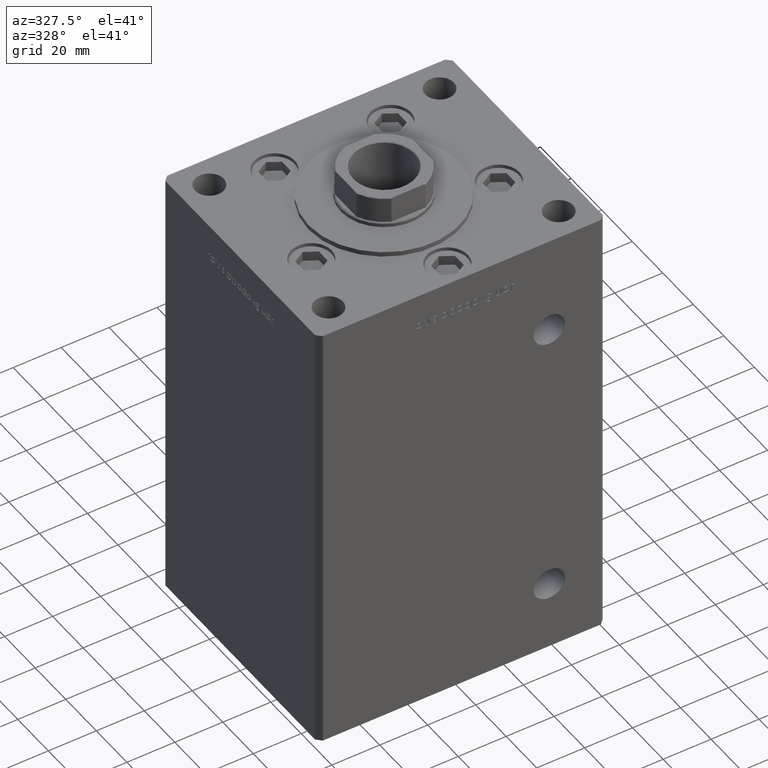
[diagram: clean part render]
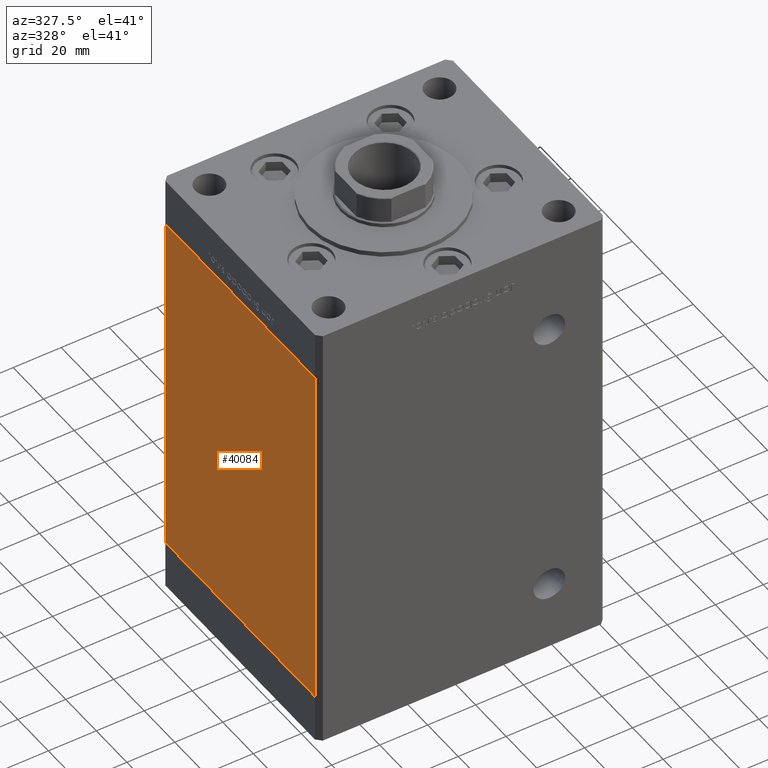
[diagram: same view with one face highlighted and labeled with its STEP entity id]
A machine part, auxiliary view. The second image highlights one B-rep face of the part: STEP entity #40084.
In plain terms, the highlighted planar face has unit normal (1, 0, 0).
Its self-contained STEP definition (entity closure, byte-faithful):
#43 = VECTOR ( 'NONE', #3047, 1000.000000000000000 ) ;
#3047 = DIRECTION ( 'NONE',  ( 2.832201593431521726E-16, -1.000000000000000000, 0.000000000000000000 ) ) ;
#4677 = EDGE_CURVE ( 'NONE', #10060, #26666, #43901, .T. ) ;
#4969 = VERTEX_POINT ( 'NONE', #15630 ) ;
#5740 = EDGE_LOOP ( 'NONE', ( #39928, #42351, #50697, #32321 ) ) ;
#6906 = CARTESIAN_POINT ( 'NONE',  ( -60.00000000000001421, 49.00000000000000000, 0.000000000000000000 ) ) ;
#7263 = LINE ( 'NONE', #35724, #43 ) ;
#10060 = VERTEX_POINT ( 'NONE', #40293 ) ;
#10349 = PLANE ( 'NONE',  #18941 ) ;
#11350 = DIRECTION ( 'NONE',  ( -0.000000000000000000, -0.000000000000000000, -1.000000000000000000 ) ) ;
#13525 = DIRECTION ( 'NONE',  ( -2.832201593431521726E-16, 1.000000000000000000, 0.000000000000000000 ) ) ;
#15430 = CARTESIAN_POINT ( 'NONE',  ( -60.00000000000001421, 49.00000000000000000, 148.5000000000000000 ) ) ;
#15630 = CARTESIAN_POINT ( 'NONE',  ( -59.99999999999998579, -49.00000000000000000, 0.000000000000000000 ) ) ;
#15985 = EDGE_CURVE ( 'NONE', #26666, #4969, #30618, .T. ) ;
#18941 = AXIS2_PLACEMENT_3D ( 'NONE', #21681, #29355, #13525 ) ;
#19110 = DIRECTION ( 'NONE',  ( 2.832201593431521726E-16, -1.000000000000000000, 0.000000000000000000 ) ) ;
#21681 = CARTESIAN_POINT ( 'NONE',  ( -60.00000000000001421, 49.00000000000000000, 148.5000000000000000 ) ) ;
#22007 = VECTOR ( 'NONE', #19110, 1000.000000000000000 ) ;
#23116 = CARTESIAN_POINT ( 'NONE',  ( -60.00000000000001421, 49.00000000000000000, 148.5000000000000000 ) ) ;
#23650 = VECTOR ( 'NONE', #51581, 1000.000000000000000 ) ;
#26666 = VERTEX_POINT ( 'NONE', #49597 ) ;
#27077 = LINE ( 'NONE', #23116, #23650 ) ;
#29355 = DIRECTION ( 'NONE',  ( 1.000000000000000000, 2.832201593431521726E-16, -0.000000000000000000 ) ) ;
#30618 = LINE ( 'NONE', #39551, #44529 ) ;
#32321 = ORIENTED_EDGE ( 'NONE', *, *, #51317, .T. ) ;
#35724 = CARTESIAN_POINT ( 'NONE',  ( -60.00000000000001421, 49.00000000000000000, 0.000000000000000000 ) ) ;
#39551 = CARTESIAN_POINT ( 'NONE',  ( -59.99999999999998579, -49.00000000000000000, 148.5000000000000000 ) ) ;
#39928 = ORIENTED_EDGE ( 'NONE', *, *, #48760, .T. ) ;
#40084 = ADVANCED_FACE ( 'NONE', ( #43401 ), #10349, .F. ) ;
#40293 = CARTESIAN_POINT ( 'NONE',  ( -60.00000000000001421, 49.00000000000000000, 148.5000000000000000 ) ) ;
#41935 = VERTEX_POINT ( 'NONE', #6906 ) ;
#42351 = ORIENTED_EDGE ( 'NONE', *, *, #15985, .F. ) ;
#43401 = FACE_OUTER_BOUND ( 'NONE', #5740, .T. ) ;
#43901 = LINE ( 'NONE', #15430, #22007 ) ;
#44529 = VECTOR ( 'NONE', #11350, 1000.000000000000000 ) ;
#48760 = EDGE_CURVE ( 'NONE', #41935, #4969, #7263, .T. ) ;
#49597 = CARTESIAN_POINT ( 'NONE',  ( -59.99999999999998579, -49.00000000000000000, 148.5000000000000000 ) ) ;
#50697 = ORIENTED_EDGE ( 'NONE', *, *, #4677, .F. ) ;
#51317 = EDGE_CURVE ( 'NONE', #10060, #41935, #27077, .T. ) ;
#51581 = DIRECTION ( 'NONE',  ( -0.000000000000000000, -0.000000000000000000, -1.000000000000000000 ) ) ;